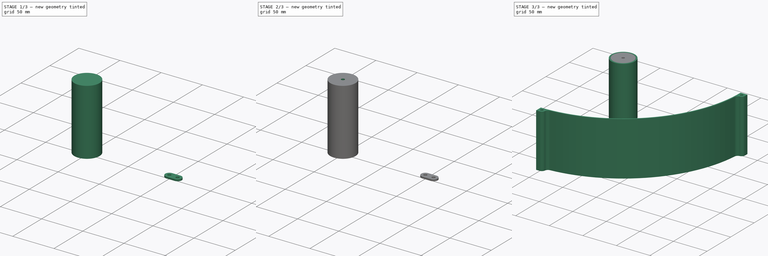
[diagram: build sequence overview — one tinted view per stage of 3, left to right]
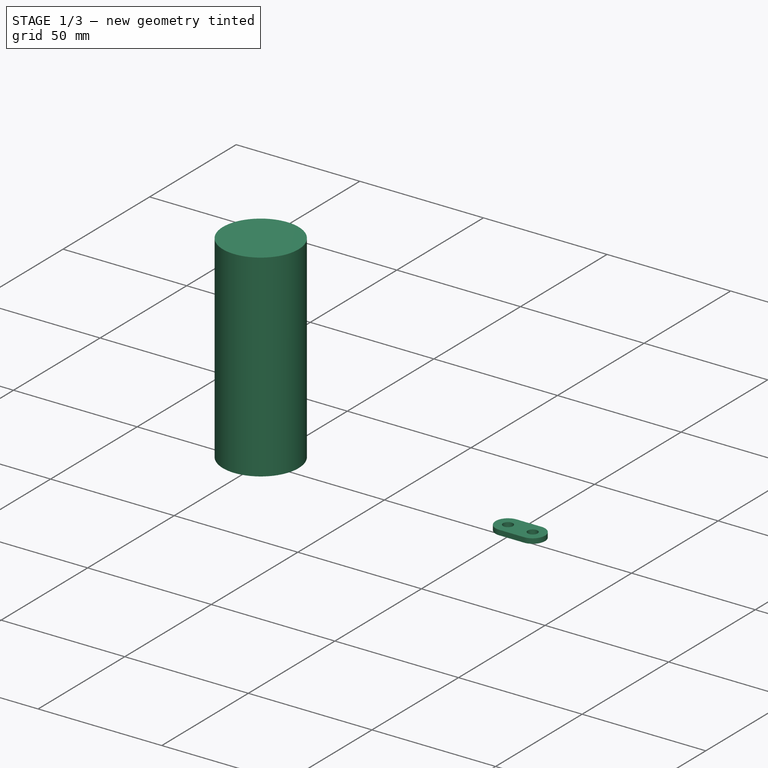
[diagram: stage 1 of 3 — iso view after this stage's code; geometry added in this stage tinted green]
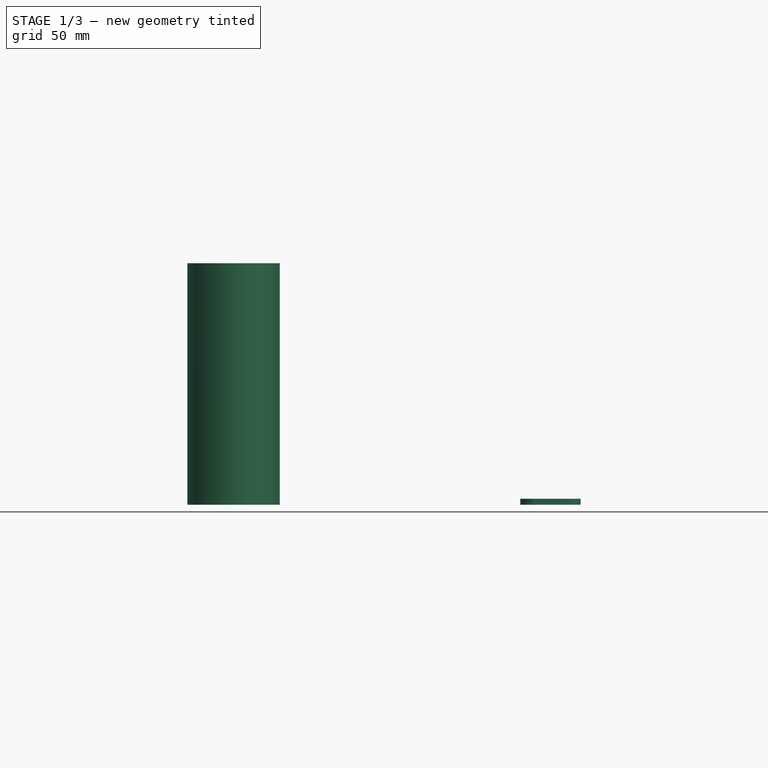
[diagram: stage 1 of 3 — front view after this stage's code; geometry added in this stage tinted green]
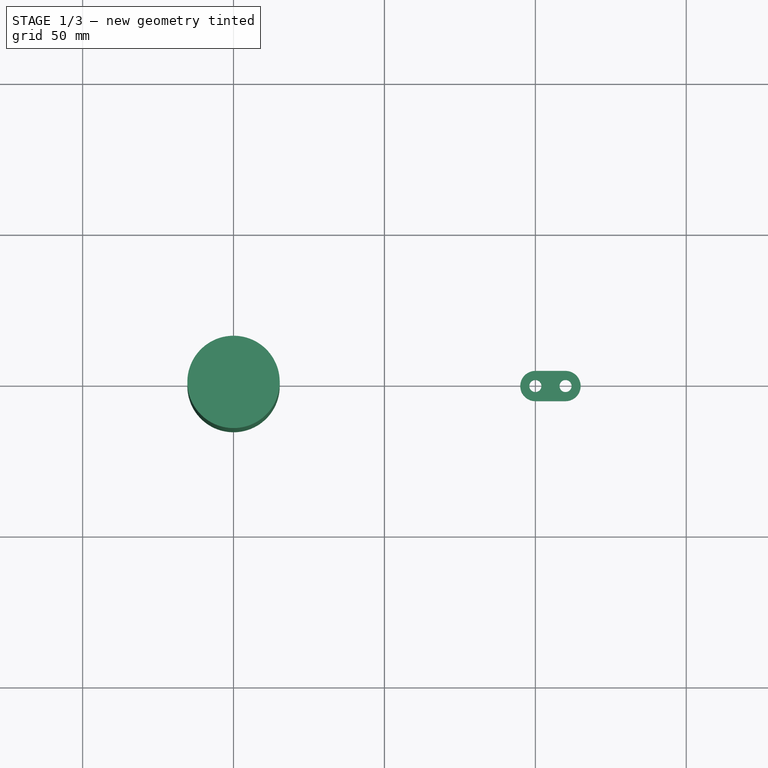
[diagram: stage 1 of 3 — top view after this stage's code; geometry added in this stage tinted green]
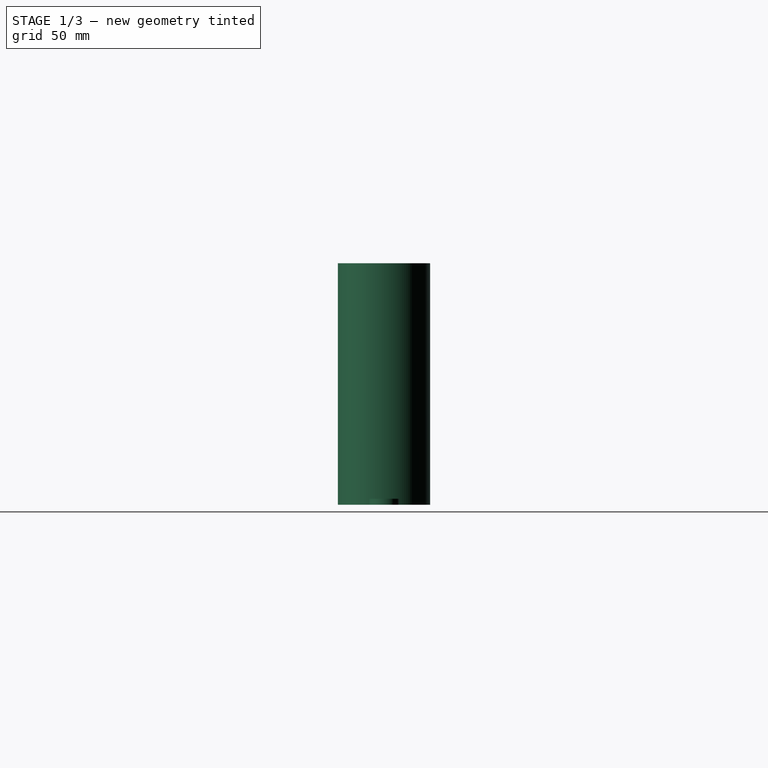
[diagram: stage 1 of 3 — right view after this stage's code; geometry added in this stage tinted green]
FCSTD DOCUMENT  (FreeCAD 0.20R29603 (Git))
Label: Concrete Weight Mold
License: All rights reserved
LicenseURL: http://en.wikipedia.org/wiki/All_rights_reserved
objects: Sketcher::SketchObject×4, PartDesign::Pad×4, PartDesign::Body×4, App::Part×4, Spreadsheet::Sheet×1, PartDesign::Hole×1
note: 18 computed .brp shape members not serialized (recipe doc carries the construction recipe); baked Part::Feature solids carry a one-line shape summary decoded from their .brp

FEATURE [PartDesign::Body] Body001
  Group = -> [Sketch001,Pad001]
  Origin = -> Origin003
  Tip = -> Pad001
FEATURE [App::Part] Part001  label="Pod"
  Group = -> [Body001]
  Origin = -> Origin002
FEATURE [Sketcher::SketchObject] Sketch002
  FullyConstrained = true
  MapMode = 5
  Support = -> [XY_Plane005]
  expr: Constraints[1] = Spreadsheet.pod_inner_diameter - Spreadsheet.pod_holder_clearance
  sketch-geometry (1):
    g0: Circle CenterX=0 CenterY=0 CenterZ=0 NormalX=0 NormalY=0 NormalZ=1 AngleXU=0 Radius=15.3
  constraints (2):
    c: Coincident(g0,g-1)
    c: Diameter(g0) = 30.6
FEATURE [PartDesign::Pad] Pad002
  Direction = (0,0,1)
  Length = 80
  Length2 = 10
  Profile = -> Sketch002
  ReferenceAxis = -> Sketch002 [N_Axis]
  Type = 0
  expr: Length = Spreadsheet.pod_holder_height
FEATURE [PartDesign::Body] Body002
  Group = -> [Sketch002,Pad002,Hole]
  Origin = -> Origin005
  Tip = -> Hole
FEATURE [App::Part] Part002  label="Pod Holder"
  Group = -> [Body002]
  Origin = -> Origin004
FEATURE [Sketcher::SketchObject] Sketch003
  FullyConstrained = true
  MapMode = 5
  Support = -> [XY_Plane007]
  expr: Constraints[14] = Spreadsheet.mold_quarter_width
  expr: Constraints[4] = Spreadsheet.mold_quarter_hole_edge_distance * 2
  expr: Constraints[5] = Spreadsheet.mold_quarter_hole_diameter
  expr: Constraints[6] = Spreadsheet.mold_quarter_hole_diameter
  sketch-geometry (7):
    g0: GeomPoint X=100 Y=0 Z=0
    g1: Circle CenterX=100 CenterY=0 CenterZ=0 NormalX=0 NormalY=0 NormalZ=1 AngleXU=0 Radius=2
    g2: Circle CenterX=110 CenterY=0 CenterZ=0 NormalX=0 NormalY=0 NormalZ=1 AngleXU=0 Radius=2
    g3: ArcOfCircle CenterX=100 CenterY=0 CenterZ=0 NormalX=0 NormalY=0 NormalZ=1 AngleXU=0 Radius=5 StartAngle=1.5708 EndAngle=4.71239
    g4: ArcOfCircle CenterX=110 CenterY=0 CenterZ=0 NormalX=0 NormalY=0 NormalZ=1 AngleXU=0 Radius=5 StartAngle=4.71239 EndAngle=7.85398
    g5: LineSegment StartX=100 StartY=5 StartZ=0 EndX=110 EndY=5 EndZ=0
    g6: LineSegment StartX=100 StartY=-5 StartZ=0 EndX=110 EndY=-5 EndZ=0
  constraints (19):
    c: Horizontal(g0,g-1)
    c: Distance(g0,g-1) = 100
    c: Coincident(g1,g0)
    c: PointOnObject(g2,g-1)
    c: Distance(g1,g2) = 10
    c: Diameter(g2) = 4
    c: Diameter(g1) = 4
    c: Coincident(g3,g1)
    c: Coincident(g4,g2)
    c: Coincident(g5,g3)
    c: Coincident(g5,g4)
    c: Coincident(g6,g3)
    c: Coincident(g6,g4)
    c: Parallel(g5,g6)
    c: Diameter(g4) = 10
    c: Vertical(g4,g2)
    c: Vertical(g4,g2)
    c: Vertical(g3,g1)
    c: Vertical(g3,g1)
FEATURE [PartDesign::Pad] Pad003
  Direction = (0,0,1)
  Length = 2
  Length2 = 10
  Profile = -> Sketch003
  ReferenceAxis = -> Sketch003 [N_Axis]
  Type = 0
  expr: Length = Spreadsheet.mold_quarter_connection_height
FEATURE [PartDesign::Body] Body003
  Group = -> [Sketch003,Pad003]
  Origin = -> Origin007
  Tip = -> Pad003
FEATURE [App::Part] Part003  label="Mold Quarter Connection"
  Group = -> [Body003]
  Origin = -> Origin006
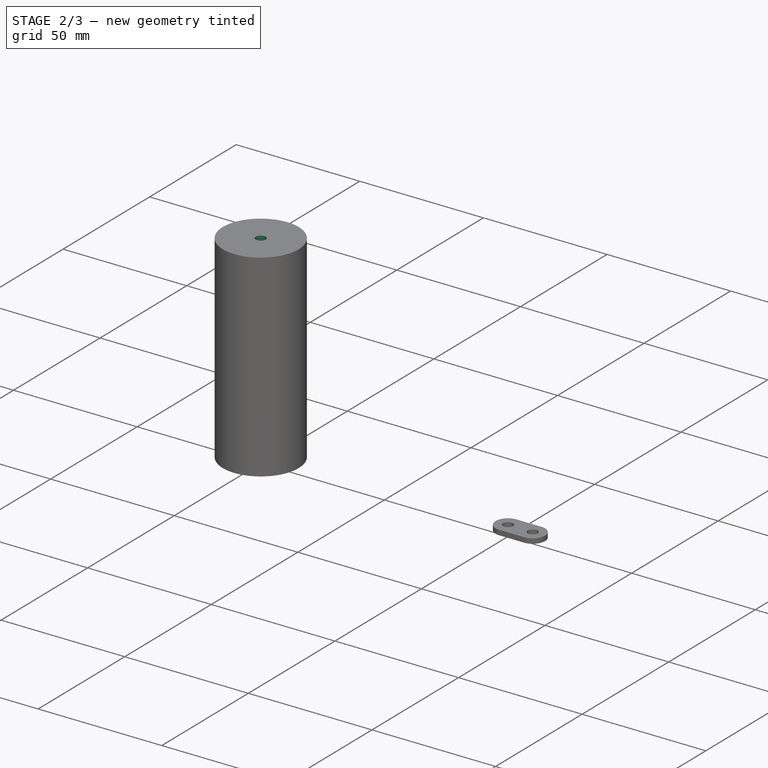
[diagram: stage 2 of 3 — iso view after this stage's code; geometry added in this stage tinted green]
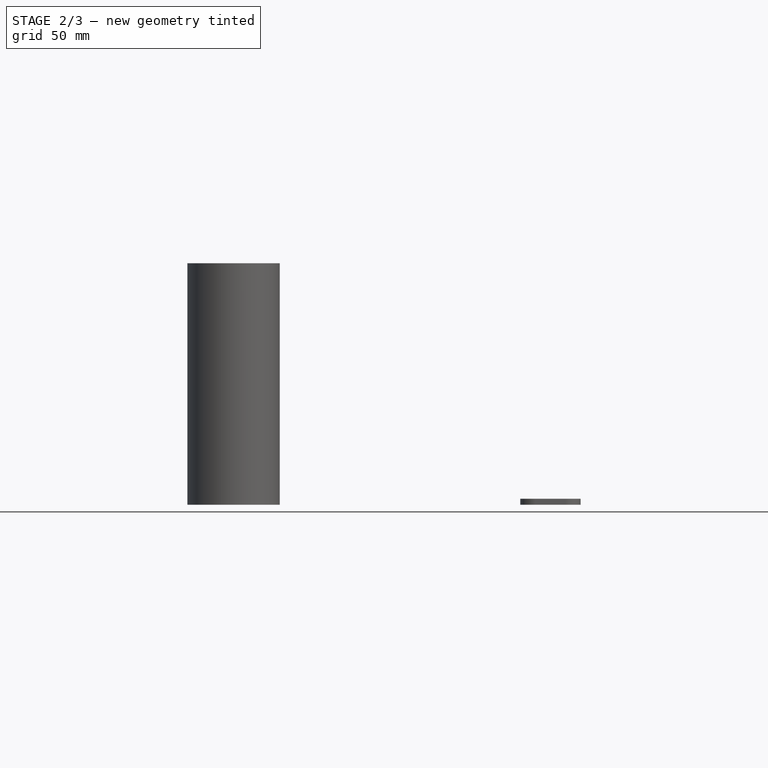
[diagram: stage 2 of 3 — front view after this stage's code; geometry added in this stage tinted green]
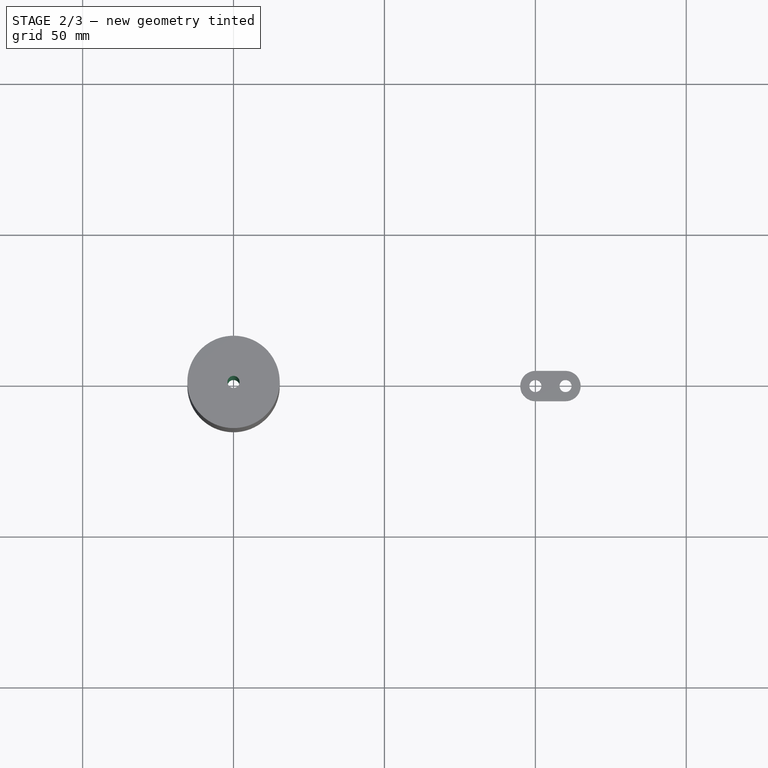
[diagram: stage 2 of 3 — top view after this stage's code; geometry added in this stage tinted green]
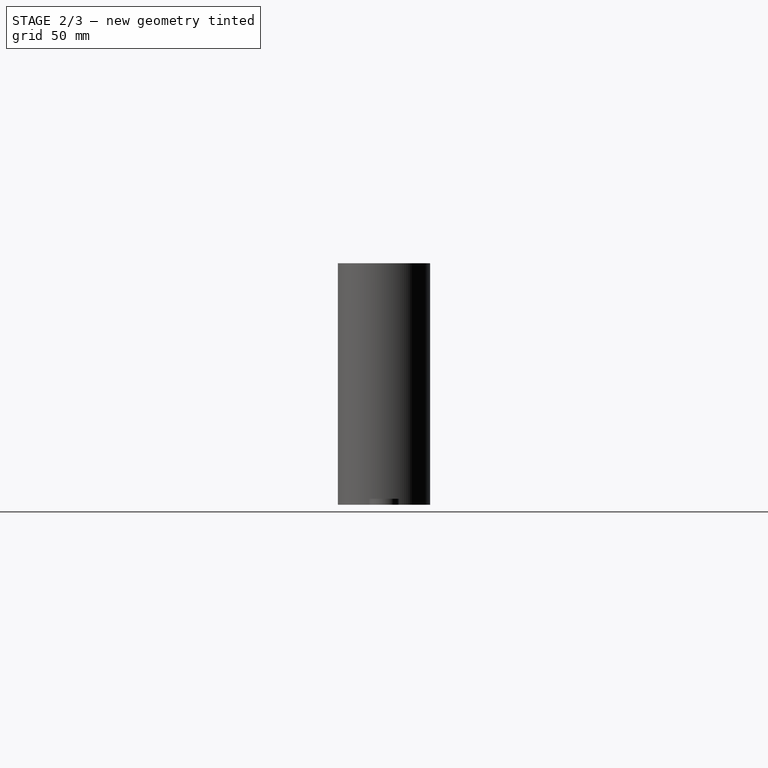
[diagram: stage 2 of 3 — right view after this stage's code; geometry added in this stage tinted green]
FEATURE [PartDesign::Hole] Hole
  BaseFeature = -> Pad002
  CustomThreadClearance = 0
  Depth = 106.366
  DepthType = 1
  Diameter = 4
  DrillForDepth = false
  DrillPoint = 1
  DrillPointAngle = 118
  HoleCutCountersinkAngle = 90
  HoleCutCustomValues = false
  HoleCutDepth = 0
  HoleCutDiameter = 6.1
  HoleCutType = 0
  ModelThread = false
  Profile = -> Pad002 [Face3]
  Tapered = false
  TaperedAngle = 90
  ThreadClass = 0
  ThreadDepth = 106.366
  ThreadDepthType = 0
  ThreadDirection = 0
  ThreadFit = 0
  ThreadSize = 0
  ThreadType = 0
  Threaded = false
  UseCustomThreadClearance = false
  expr: Diameter = Spreadsheet.pod_holder_hole_diameter
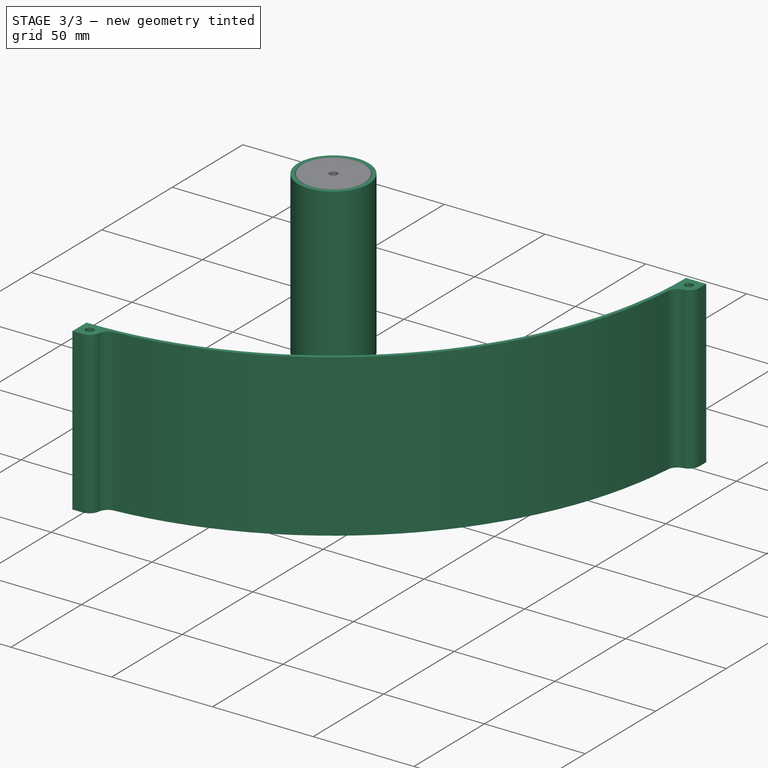
[diagram: stage 3 of 3 — iso view after this stage's code; geometry added in this stage tinted green]
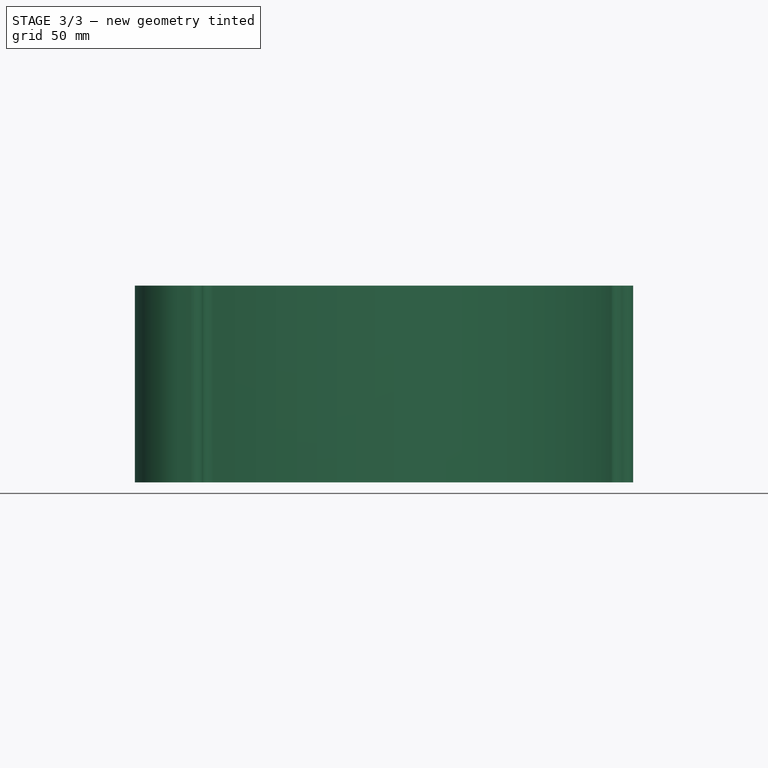
[diagram: stage 3 of 3 — front view after this stage's code; geometry added in this stage tinted green]
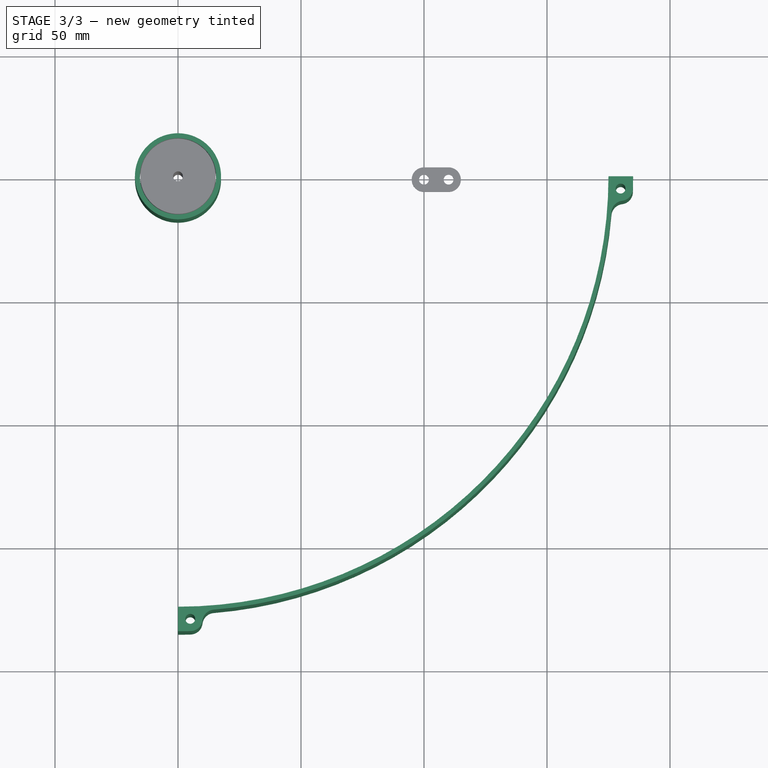
[diagram: stage 3 of 3 — top view after this stage's code; geometry added in this stage tinted green]
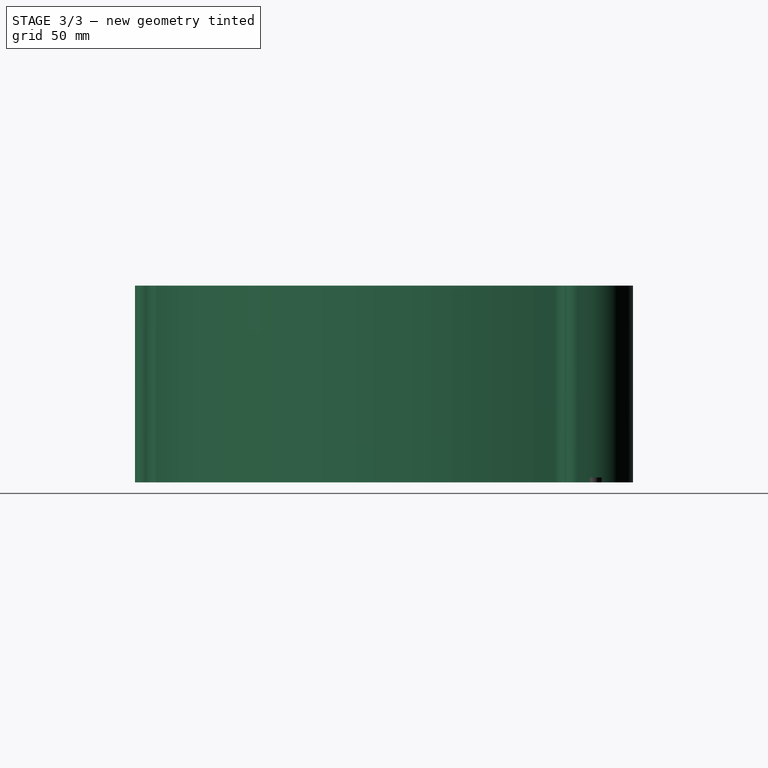
[diagram: stage 3 of 3 — right view after this stage's code; geometry added in this stage tinted green]
FEATURE [Sketcher::SketchObject] Sketch
  FullyConstrained = true
  MapMode = 5
  Support = -> [XY_Plane001]
  expr: Constraints[10] = Spreadsheet.mold_quarter_hole_diameter
  expr: Constraints[11] = Spreadsheet.mold_quarter_diameter / 2 + Spreadsheet.mold_quarter_width / 2
  expr: Constraints[12] = Spreadsheet.mold_quarter_hole_edge_distance
  expr: Constraints[13] = Spreadsheet.mold_quarter_hole_edge_distance
  expr: Constraints[31] = Spreadsheet.mold_quarter_diameter / 2 + Spreadsheet.mold_quarter_thin_width
  expr: Constraints[43] = Spreadsheet.mold_quarter_diameter / 2 + Spreadsheet.mold_quarter_width / 2 + Spreadsheet.mold_quarter_thin_width
  expr: Constraints[44] = Spreadsheet.mold_quarter_diameter / 2 + Spreadsheet.mold_quarter_width / 2 + Spreadsheet.mold_quarter_thin_width
  expr: Constraints[45] = Spreadsheet.mold_quarter_width
  expr: Constraints[5] = Spreadsheet.mold_quarter_diameter / 2
  expr: Constraints[6] = Spreadsheet.mold_quarter_width
  expr: Constraints[8] = Spreadsheet.mold_quarter_hole_diameter
  expr: Constraints[9] = Spreadsheet.mold_quarter_diameter / 2 + Spreadsheet.mold_quarter_width / 2
  sketch-geometry (16):
    g0: ArcOfCircle CenterX=0 CenterY=0 CenterZ=0 NormalX=0 NormalY=0 NormalZ=1 AngleXU=0 Radius=175 StartAngle=4.71239 EndAngle=6.28319
    g1: LineSegment StartX=175 StartY=0 StartZ=0 EndX=185 EndY=0 EndZ=0
    g2: LineSegment StartX=0 StartY=-175 StartZ=0 EndX=0 EndY=-185 EndZ=0
    g3: Circle CenterX=5 CenterY=-179.931 CenterZ=0 NormalX=0 NormalY=0 NormalZ=1 AngleXU=0 Radius=2
    g4: Circle CenterX=179.931 CenterY=-5 CenterZ=0 NormalX=0 NormalY=0 NormalZ=1 AngleXU=0 Radius=2
    g5: ArcOfCircle CenterX=0 CenterY=0 CenterZ=0 NormalX=0 NormalY=0 NormalZ=1 AngleXU=0 Radius=185 StartAngle=4.71239 EndAngle=4.73942
    g6: ArcOfCircle CenterX=0 CenterY=0 CenterZ=0 NormalX=0 NormalY=0 NormalZ=1 AngleXU=0 Radius=185 StartAngle=6.25615 EndAngle=6.28319
    g7: ArcOfCircle CenterX=179.931 CenterY=-5 CenterZ=0 NormalX=0 NormalY=0 NormalZ=1 AngleXU=0 Radius=5.00188 StartAngle=4.83829 EndAngle=6.28319
    g8: ArcOfCircle CenterX=181.187 CenterY=-14.9227 CenterZ=0 NormalX=0 NormalY=0 NormalZ=1 AngleXU=0 Radius=5 StartAngle=1.6967 EndAngle=3.05942
    g9: ArcOfCircle CenterX=5 CenterY=-179.931 CenterZ=0 NormalX=0 NormalY=0 NormalZ=1 AngleXU=0 Radius=5.00188 StartAngle=4.71239 EndAngle=6.15728
    g10: ArcOfCircle CenterX=14.9227 CenterY=-181.187 CenterZ=0 NormalX=0 NormalY=0 NormalZ=1 AngleXU=0 Radius=5 StartAngle=1.65297 EndAngle=3.01569
    g11: LineSegment StartX=14.9227 StartY=-181.187 StartZ=0 EndX=0 EndY=0 EndZ=0
    g12: ArcOfCircle CenterX=0 CenterY=0 CenterZ=0 NormalX=0 NormalY=0 NormalZ=1 AngleXU=0 Radius=176.8 StartAngle=4.79456 EndAngle=6.20101
    g13: LineSegment StartX=179.931 StartY=-5 StartZ=0 EndX=181.187 EndY=-14.9227 EndZ=0
    g14: LineSegment StartX=5 StartY=-179.931 StartZ=0 EndX=14.9227 EndY=-181.187 EndZ=0
    g15: LineSegment StartX=181.187 StartY=-14.9227 StartZ=0 EndX=0 EndY=1.8e-15 EndZ=0
  constraints (46):
    c: Coincident(g0,g-1)
    c: Coincident(g1,g0)
    c: Coincident(g2,g0)
    c: Vertical(g0,g0)
    c: Vertical(g2,g0)
    c: Distance(g0,g0) = 175
    c: Distance(g0,g1) = 10
    c: Horizontal(g0,g1)
    c: Diameter(g3) = 4
    c: Distance(g3,g0) = 180
    c: Diameter(g4) = 4
    c: Distance(g0,g4) = 180
    c: DistanceY(g4,g0) = 5
    c: DistanceX(g0,g3) = 5
    c: Coincident(g5,g0)
    c: Coincident(g5,g2)
    c: Vertical(g5,g3)
    c: Coincident(g6,g0)
    c: Coincident(g6,g1)
    c: Horizontal(g6,g4)
    c: Coincident(g7,g4)
    c: Coincident(g7,g6)
    c: Coincident(g8,g7)
    c: Coincident(g9,g3)
    c: Coincident(g9,g5)
    c: Coincident(g10,g9)
    c: Coincident(g11,g10)
    c: Coincident(g11,g0)
    c: Coincident(g12,g0)
    c: Coincident(g12,g8)
    c: Coincident(g12,g10)
    c: Distance(g10,g0) = 176.8
    c: PointOnObject(g10,g11)
    c: Coincident(g13,g4)
    c: Coincident(g13,g8)
    c: PointOnObject(g7,g13)
    c: Coincident(g14,g3)
    c: Coincident(g14,g10)
    c: PointOnObject(g9,g14)
    c: Coincident(g15,g8)
    c: Coincident(g15,g0)
    c: PointOnObject(g8,g15)
    c: Horizontal(g0,g0)
    c: Distance(g11) = 181.8
    c: Distance(g15) = 181.8
    c: DistanceY(g2,g0) = 10
FEATURE [Spreadsheet::Sheet] Spreadsheet
  cells = A1=mold_quarter_diameter; B1(mold_quarter_diameter)=350; A2=mold_quarter_width; B2(mold_quarter_width)=10; A3=mold_quarter_thin_width; B3(mold_quarter_thin_width)=1.8; A4=mold_quarter_height; B4(mold_quarter_height)=80; A5=mold_quarter_hole_diameter; B5(mold_quarter_hole_diameter)=4; A6=mold_quarter_hole_edge_distance; B6(mold_quarter_hole_edge_distance)=5; A8=mold_quarter_connection_height; B8(mold_quarter_connection_height)=2; A10=pod_inner_diameter; B10(pod_inner_diameter)=31; A11=pod_wall_thickness; B11(pod_wall_thickness)=2; A12=pod_height; B12(pod_height)=80; A14=pod_holder_height; B14(pod_holder_height)=80; A15=pod_holder_clearance; B15(pod_holder_clearance)=0.4; A16=pod_holder_hole_diameter; B16(pod_holder_hole_diameter)=4
FEATURE [PartDesign::Pad] Pad
  Direction = (0,0,1)
  Length = 80
  Length2 = 10
  Profile = -> Sketch
  ReferenceAxis = -> Sketch [N_Axis]
  Type = 0
  expr: Length = Spreadsheet.mold_quarter_height
FEATURE [PartDesign::Body] Body
  Group = -> [Sketch,Pad]
  Origin = -> Origin001
  Tip = -> Pad
FEATURE [App::Part] Part  label="Mold Quarter"
  Group = -> [Body]
  Origin = -> Origin
FEATURE [Sketcher::SketchObject] Sketch001
  FullyConstrained = true
  MapMode = 5
  Support = -> [XY_Plane003]
  expr: Constraints[1] = Spreadsheet.pod_inner_diameter
  expr: Constraints[3] = Spreadsheet.pod_inner_diameter + Spreadsheet.pod_wall_thickness * 2
  sketch-geometry (2):
    g0: Circle CenterX=0 CenterY=0 CenterZ=0 NormalX=0 NormalY=0 NormalZ=1 AngleXU=0 Radius=15.5
    g1: Circle CenterX=0 CenterY=0 CenterZ=0 NormalX=0 NormalY=0 NormalZ=1 AngleXU=0 Radius=17.5
  constraints (4):
    c: Coincident(g0,g-1)
    c: Diameter(g0) = 31
    c: Coincident(g1,g0)
    c: Diameter(g1) = 35
FEATURE [PartDesign::Pad] Pad001
  Direction = (0,0,1)
  Length = 80
  Length2 = 10
  Profile = -> Sketch001
  ReferenceAxis = -> Sketch001 [N_Axis]
  Type = 0
  expr: Length = Spreadsheet.pod_height
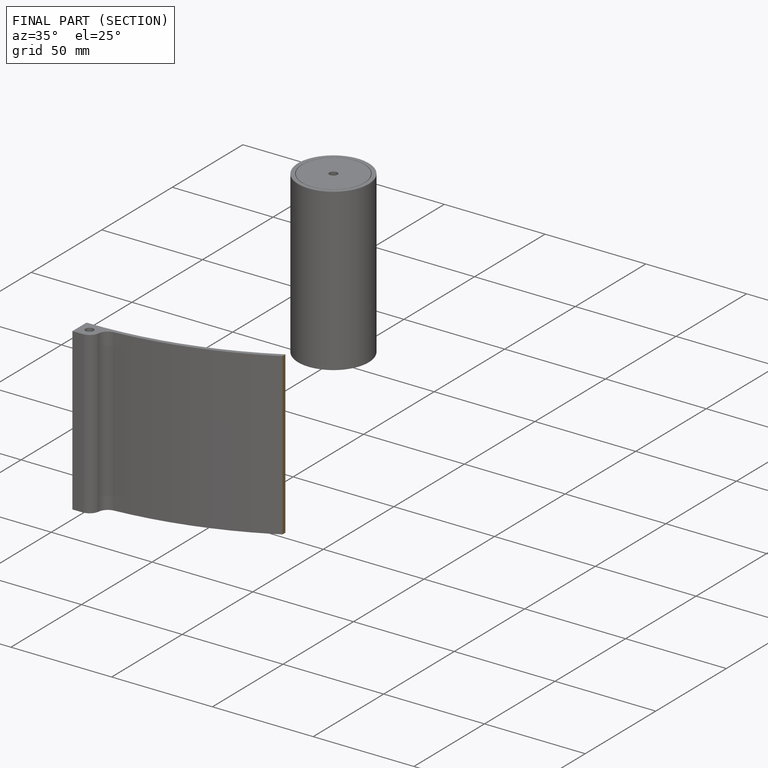
[diagram: finished part — half-section view (interior)]
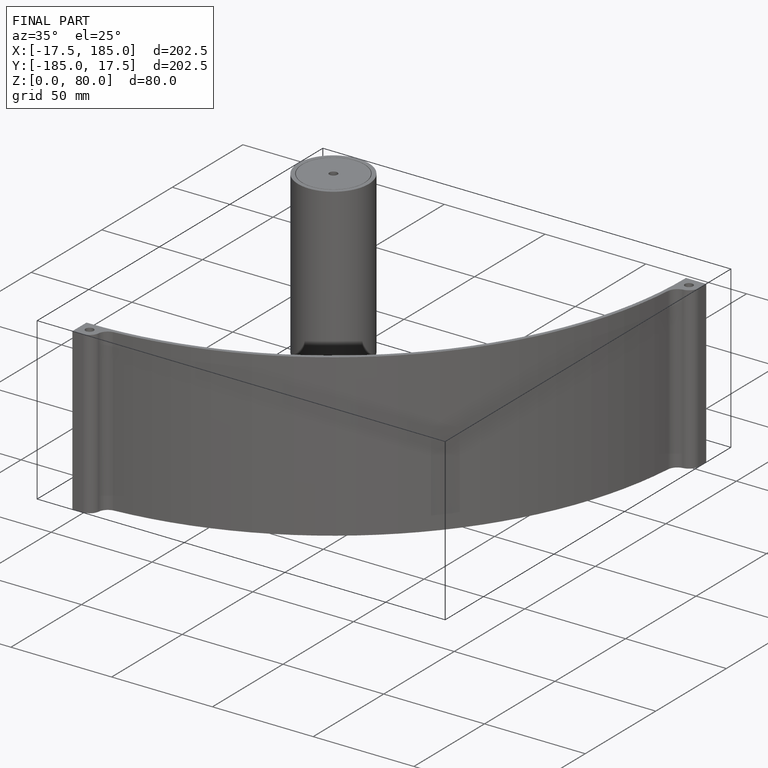
[diagram: finished part — iso view with bounding-box wireframe]
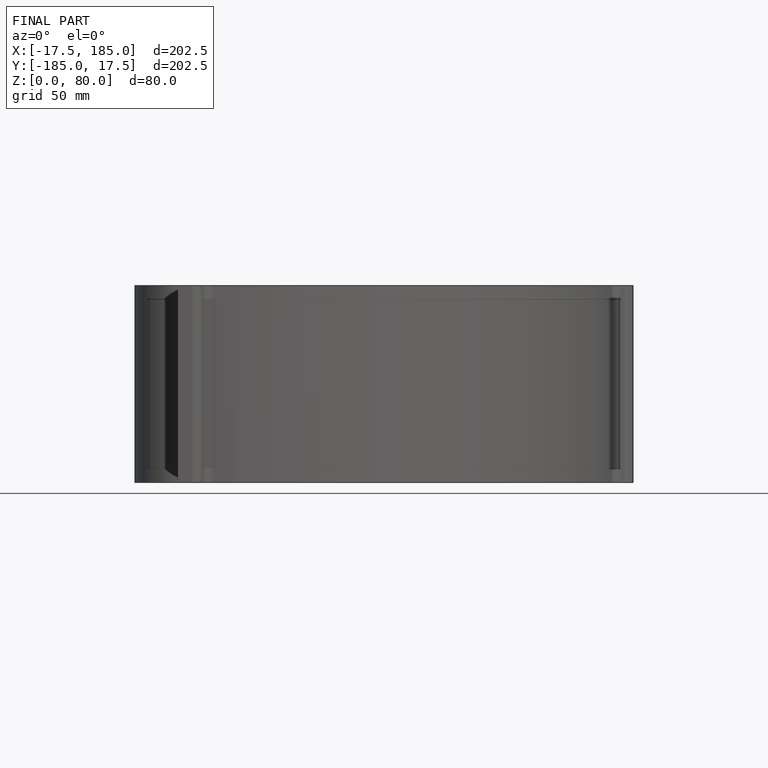
[diagram: finished part — front view with bounding-box wireframe]
